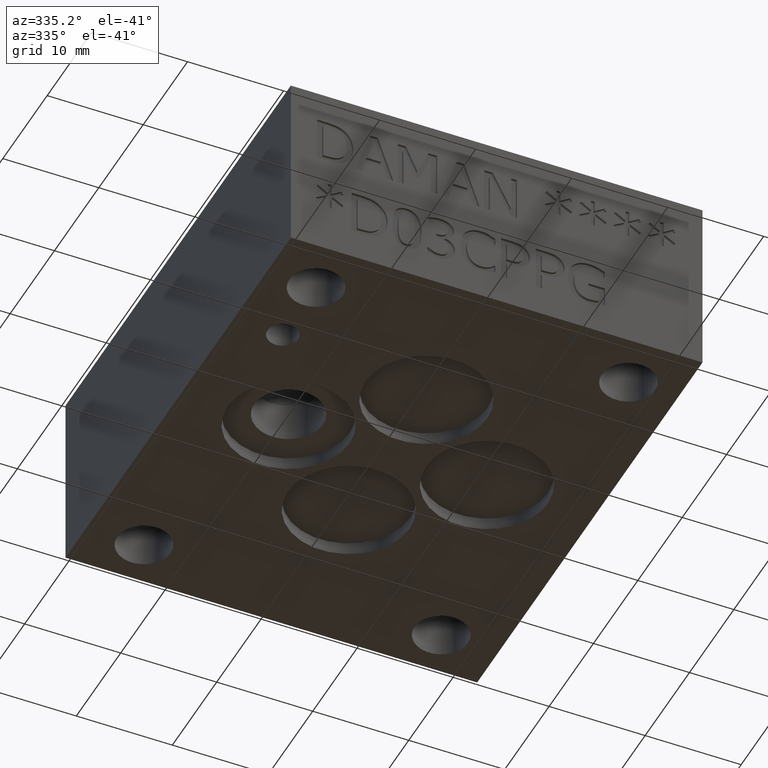
[diagram: clean part render]
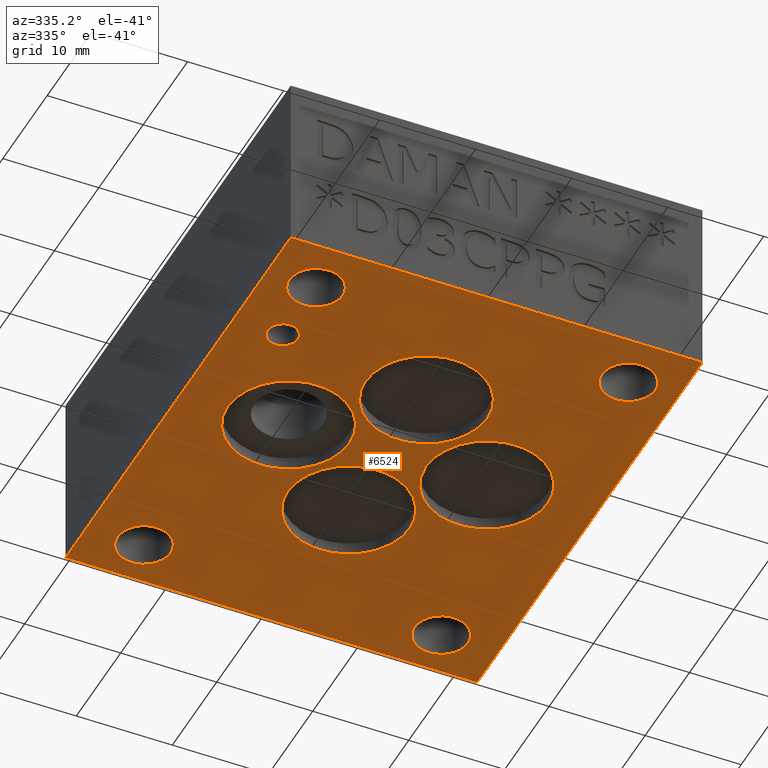
[diagram: same view with one face highlighted and labeled with its STEP entity id]
A machine part, auxiliary view. The second image highlights one B-rep face of the part: STEP entity #6524.
In plain terms, the highlighted planar face has unit normal (0, 0, 1).
Its self-contained STEP definition (entity closure, byte-faithful):
#39=CIRCLE('',#6777,0.25);
#40=CIRCLE('',#6778,0.25);
#43=CIRCLE('',#6783,0.25);
#44=CIRCLE('',#6784,0.25);
#47=CIRCLE('',#6789,0.25);
#48=CIRCLE('',#6790,0.25);
#52=CIRCLE('',#6797,0.25);
#53=CIRCLE('',#6798,0.25);
#56=CIRCLE('',#6803,0.0625);
#57=CIRCLE('',#6804,0.0625);
#58=CIRCLE('',#6806,0.1095);
#59=CIRCLE('',#6807,0.1095);
#60=CIRCLE('',#6809,0.1095);
#61=CIRCLE('',#6810,0.1095);
#62=CIRCLE('',#6812,0.1095);
#63=CIRCLE('',#6813,0.1095);
#64=CIRCLE('',#6815,0.1095);
#65=CIRCLE('',#6816,0.1095);
#98=FACE_BOUND('',#919,.T.);
#99=FACE_BOUND('',#920,.T.);
#100=FACE_BOUND('',#921,.T.);
#101=FACE_BOUND('',#922,.T.);
#102=FACE_BOUND('',#923,.T.);
#103=FACE_BOUND('',#924,.T.);
#104=FACE_BOUND('',#925,.T.);
#105=FACE_BOUND('',#926,.T.);
#106=FACE_BOUND('',#927,.T.);
#546=FACE_OUTER_BOUND('',#918,.T.);
#918=EDGE_LOOP('',(#5931,#5932,#5933,#5934));
#919=EDGE_LOOP('',(#5935,#5936));
#920=EDGE_LOOP('',(#5937,#5938));
#921=EDGE_LOOP('',(#5939,#5940));
#922=EDGE_LOOP('',(#5941,#5942));
#923=EDGE_LOOP('',(#5943,#5944));
#924=EDGE_LOOP('',(#5945,#5946));
#925=EDGE_LOOP('',(#5947,#5948));
#926=EDGE_LOOP('',(#5949,#5950));
#927=EDGE_LOOP('',(#5951,#5952));
#1570=LINE('',#11241,#2266);
#1621=LINE('',#11590,#2317);
#1623=LINE('',#11594,#2319);
#1624=LINE('',#11596,#2320);
#2266=VECTOR('',#7866,1.688);
#2317=VECTOR('',#8061,2.);
#2319=VECTOR('',#8065,1.688);
#2320=VECTOR('',#8068,2.);
#3075=VERTEX_POINT('',#11238);
#3076=VERTEX_POINT('',#11240);
#3122=VERTEX_POINT('',#11508);
#3123=VERTEX_POINT('',#11510);
#3126=VERTEX_POINT('',#11519);
#3127=VERTEX_POINT('',#11521);
#3130=VERTEX_POINT('',#11530);
#3131=VERTEX_POINT('',#11532);
#3135=VERTEX_POINT('',#11545);
#3136=VERTEX_POINT('',#11547);
#3140=VERTEX_POINT('',#11558);
#3141=VERTEX_POINT('',#11560);
#3142=VERTEX_POINT('',#11564);
#3143=VERTEX_POINT('',#11566);
#3144=VERTEX_POINT('',#11570);
#3145=VERTEX_POINT('',#11572);
#3146=VERTEX_POINT('',#11576);
#3147=VERTEX_POINT('',#11578);
#3148=VERTEX_POINT('',#11582);
#3149=VERTEX_POINT('',#11584);
#3150=VERTEX_POINT('',#11588);
#3151=VERTEX_POINT('',#11592);
#3979=EDGE_CURVE('',#3075,#3076,#1570,.T.);
#4046=EDGE_CURVE('',#3123,#3122,#39,.T.);
#4047=EDGE_CURVE('',#3122,#3123,#40,.T.);
#4051=EDGE_CURVE('',#3127,#3126,#43,.T.);
#4052=EDGE_CURVE('',#3126,#3127,#44,.T.);
#4056=EDGE_CURVE('',#3131,#3130,#47,.T.);
#4057=EDGE_CURVE('',#3130,#3131,#48,.T.);
#4063=EDGE_CURVE('',#3136,#3135,#52,.T.);
#4064=EDGE_CURVE('',#3135,#3136,#53,.T.);
#4069=EDGE_CURVE('',#3141,#3140,#56,.T.);
#4070=EDGE_CURVE('',#3140,#3141,#57,.T.);
#4072=EDGE_CURVE('',#3143,#3142,#58,.T.);
#4073=EDGE_CURVE('',#3142,#3143,#59,.T.);
#4075=EDGE_CURVE('',#3145,#3144,#60,.T.);
#4076=EDGE_CURVE('',#3144,#3145,#61,.T.);
#4078=EDGE_CURVE('',#3147,#3146,#62,.T.);
#4079=EDGE_CURVE('',#3146,#3147,#63,.T.);
#4081=EDGE_CURVE('',#3149,#3148,#64,.T.);
#4082=EDGE_CURVE('',#3148,#3149,#65,.T.);
#4084=EDGE_CURVE('',#3150,#3075,#1621,.T.);
#4086=EDGE_CURVE('',#3151,#3150,#1623,.T.);
#4087=EDGE_CURVE('',#3076,#3151,#1624,.T.);
#5931=ORIENTED_EDGE('',*,*,#3979,.F.);
#5932=ORIENTED_EDGE('',*,*,#4084,.F.);
#5933=ORIENTED_EDGE('',*,*,#4086,.F.);
#5934=ORIENTED_EDGE('',*,*,#4087,.F.);
#5935=ORIENTED_EDGE('',*,*,#4046,.T.);
#5936=ORIENTED_EDGE('',*,*,#4047,.T.);
#5937=ORIENTED_EDGE('',*,*,#4051,.T.);
#5938=ORIENTED_EDGE('',*,*,#4052,.T.);
#5939=ORIENTED_EDGE('',*,*,#4056,.T.);
#5940=ORIENTED_EDGE('',*,*,#4057,.T.);
#5941=ORIENTED_EDGE('',*,*,#4063,.T.);
#5942=ORIENTED_EDGE('',*,*,#4064,.T.);
#5943=ORIENTED_EDGE('',*,*,#4069,.T.);
#5944=ORIENTED_EDGE('',*,*,#4070,.T.);
#5945=ORIENTED_EDGE('',*,*,#4072,.T.);
#5946=ORIENTED_EDGE('',*,*,#4073,.T.);
#5947=ORIENTED_EDGE('',*,*,#4075,.T.);
#5948=ORIENTED_EDGE('',*,*,#4076,.T.);
#5949=ORIENTED_EDGE('',*,*,#4078,.T.);
#5950=ORIENTED_EDGE('',*,*,#4079,.T.);
#5951=ORIENTED_EDGE('',*,*,#4081,.T.);
#5952=ORIENTED_EDGE('',*,*,#4082,.T.);
#6184=PLANE('',#6821);
#6524=ADVANCED_FACE('',(#546,#98,#99,#100,#101,#102,#103,#104,#105,#106),
#6184,.F.);
#6777=AXIS2_PLACEMENT_3D('',#11511,#7968,#7969);
#6778=AXIS2_PLACEMENT_3D('',#11512,#7970,#7971);
#6783=AXIS2_PLACEMENT_3D('',#11522,#7981,#7982);
#6784=AXIS2_PLACEMENT_3D('',#11523,#7983,#7984);
#6789=AXIS2_PLACEMENT_3D('',#11533,#7994,#7995);
#6790=AXIS2_PLACEMENT_3D('',#11534,#7996,#7997);
#6797=AXIS2_PLACEMENT_3D('',#11548,#8012,#8013);
#6798=AXIS2_PLACEMENT_3D('',#11549,#8014,#8015);
#6803=AXIS2_PLACEMENT_3D('',#11561,#8026,#8027);
#6804=AXIS2_PLACEMENT_3D('',#11562,#8028,#8029);
#6806=AXIS2_PLACEMENT_3D('',#11567,#8033,#8034);
#6807=AXIS2_PLACEMENT_3D('',#11568,#8035,#8036);
#6809=AXIS2_PLACEMENT_3D('',#11573,#8040,#8041);
#6810=AXIS2_PLACEMENT_3D('',#11574,#8042,#8043);
#6812=AXIS2_PLACEMENT_3D('',#11579,#8047,#8048);
#6813=AXIS2_PLACEMENT_3D('',#11580,#8049,#8050);
#6815=AXIS2_PLACEMENT_3D('',#11585,#8054,#8055);
#6816=AXIS2_PLACEMENT_3D('',#11586,#8056,#8057);
#6821=AXIS2_PLACEMENT_3D('',#11598,#8071,#8072);
#7866=DIRECTION('',(1.,0.,0.));
#7968=DIRECTION('center_axis',(0.,0.,1.));
#7969=DIRECTION('ref_axis',(1.,0.,0.));
#7970=DIRECTION('center_axis',(0.,0.,1.));
#7971=DIRECTION('ref_axis',(1.,0.,0.));
#7981=DIRECTION('center_axis',(0.,0.,1.));
#7982=DIRECTION('ref_axis',(1.,0.,0.));
#7983=DIRECTION('center_axis',(0.,0.,1.));
#7984=DIRECTION('ref_axis',(1.,0.,0.));
#7994=DIRECTION('center_axis',(0.,0.,1.));
#7995=DIRECTION('ref_axis',(1.,0.,0.));
#7996=DIRECTION('center_axis',(0.,0.,1.));
#7997=DIRECTION('ref_axis',(1.,0.,0.));
#8012=DIRECTION('center_axis',(0.,0.,1.));
#8013=DIRECTION('ref_axis',(1.,0.,0.));
#8014=DIRECTION('center_axis',(0.,0.,1.));
#8015=DIRECTION('ref_axis',(1.,0.,0.));
#8026=DIRECTION('center_axis',(0.,0.,1.));
#8027=DIRECTION('ref_axis',(1.,0.,0.));
#8028=DIRECTION('center_axis',(0.,0.,1.));
#8029=DIRECTION('ref_axis',(1.,0.,0.));
#8033=DIRECTION('center_axis',(0.,0.,1.));
#8034=DIRECTION('ref_axis',(1.,0.,0.));
#8035=DIRECTION('center_axis',(0.,0.,1.));
#8036=DIRECTION('ref_axis',(1.,0.,0.));
#8040=DIRECTION('center_axis',(0.,0.,1.));
#8041=DIRECTION('ref_axis',(1.,0.,0.));
#8042=DIRECTION('center_axis',(0.,0.,1.));
#8043=DIRECTION('ref_axis',(1.,0.,0.));
#8047=DIRECTION('center_axis',(0.,0.,1.));
#8048=DIRECTION('ref_axis',(1.,0.,0.));
#8049=DIRECTION('center_axis',(0.,0.,1.));
#8050=DIRECTION('ref_axis',(1.,0.,0.));
#8054=DIRECTION('center_axis',(0.,0.,1.));
#8055=DIRECTION('ref_axis',(1.,0.,0.));
#8056=DIRECTION('center_axis',(0.,0.,1.));
#8057=DIRECTION('ref_axis',(1.,0.,0.));
#8061=DIRECTION('',(0.,-1.,0.));
#8065=DIRECTION('',(-1.,0.,0.));
#8068=DIRECTION('',(0.,1.,0.));
#8071=DIRECTION('center_axis',(0.,0.,1.));
#8072=DIRECTION('ref_axis',(1.,0.,0.));
#11238=CARTESIAN_POINT('',(0.,0.,0.));
#11240=CARTESIAN_POINT('',(1.688,0.,0.));
#11241=CARTESIAN_POINT('',(0.,0.,0.));
#11508=CARTESIAN_POINT('',(0.594,0.624,0.));
#11510=CARTESIAN_POINT('',(1.094,0.624,0.));
#11511=CARTESIAN_POINT('Origin',(0.844,0.624,0.));
#11512=CARTESIAN_POINT('Origin',(0.844,0.624,0.));
#11519=CARTESIAN_POINT('',(0.594,1.312,0.));
#11521=CARTESIAN_POINT('',(1.094,1.312,0.));
#11522=CARTESIAN_POINT('Origin',(0.844,1.312,0.));
#11523=CARTESIAN_POINT('Origin',(0.844,1.312,0.));
#11530=CARTESIAN_POINT('',(1.001,0.968,0.));
#11532=CARTESIAN_POINT('',(1.501,0.968,0.));
#11533=CARTESIAN_POINT('Origin',(1.251,0.968,0.));
#11534=CARTESIAN_POINT('Origin',(1.251,0.968,0.));
#11545=CARTESIAN_POINT('',(0.188,0.968,0.));
#11547=CARTESIAN_POINT('',(0.688,0.968,0.));
#11548=CARTESIAN_POINT('Origin',(0.438,0.968,0.));
#11549=CARTESIAN_POINT('Origin',(0.438,0.968,0.));
#11558=CARTESIAN_POINT('',(0.1415,0.513,0.));
#11560=CARTESIAN_POINT('',(0.2665,0.513,0.));
#11561=CARTESIAN_POINT('Origin',(0.204,0.513,0.));
#11562=CARTESIAN_POINT('Origin',(0.204,0.513,0.));
#11564=CARTESIAN_POINT('',(0.0945,0.218,0.));
#11566=CARTESIAN_POINT('',(0.3135,0.218,0.));
#11567=CARTESIAN_POINT('Origin',(0.204,0.218,0.));
#11568=CARTESIAN_POINT('Origin',(0.204,0.218,0.));
#11570=CARTESIAN_POINT('',(1.3755,0.218,0.));
#11572=CARTESIAN_POINT('',(1.5945,0.218,0.));
#11573=CARTESIAN_POINT('Origin',(1.485,0.218,0.));
#11574=CARTESIAN_POINT('Origin',(1.485,0.218,0.));
#11576=CARTESIAN_POINT('',(1.3445,1.812,0.));
#11578=CARTESIAN_POINT('',(1.5635,1.812,0.));
#11579=CARTESIAN_POINT('Origin',(1.454,1.812,0.));
#11580=CARTESIAN_POINT('Origin',(1.454,1.812,0.));
#11582=CARTESIAN_POINT('',(0.1255,1.812,0.));
#11584=CARTESIAN_POINT('',(0.3445,1.812,0.));
#11585=CARTESIAN_POINT('Origin',(0.235,1.812,0.));
#11586=CARTESIAN_POINT('Origin',(0.235,1.812,0.));
#11588=CARTESIAN_POINT('',(0.,2.,0.));
#11590=CARTESIAN_POINT('',(0.,2.,0.));
#11592=CARTESIAN_POINT('',(1.688,2.,0.));
#11594=CARTESIAN_POINT('',(1.688,2.,0.));
#11596=CARTESIAN_POINT('',(1.688,0.,0.));
#11598=CARTESIAN_POINT('Origin',(0.844,1.,0.));